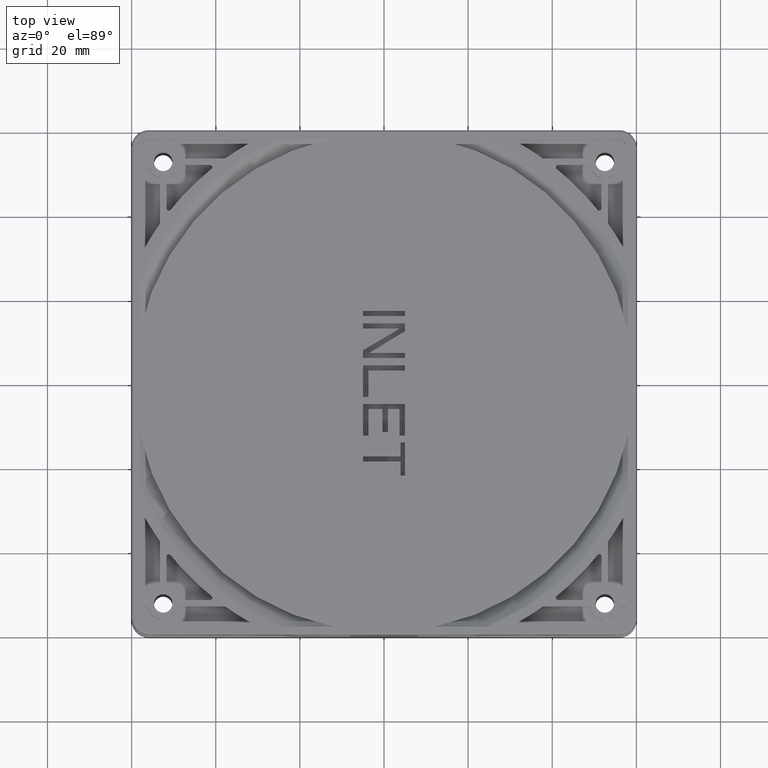
[diagram: clean part render]
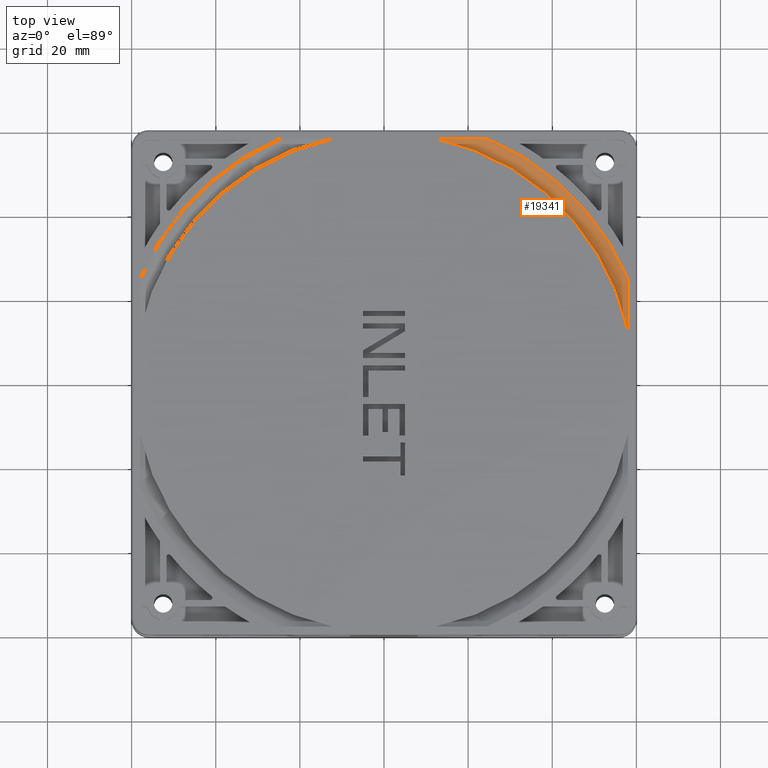
[diagram: same view with one face highlighted and labeled with its STEP entity id]
A machine part, top view. The second image highlights one B-rep face of the part: STEP entity #19341.
In plain terms, the highlighted toroidal blend (fillet) surface has major radius 63 mm and minor (blend) radius 5 mm.
Its self-contained STEP definition (entity closure, byte-faithful):
#2975=CARTESIAN_POINT('',(2.131628207280E-14,1.421085471520E-14,0.E0));
#2976=DIRECTION('',(0.E0,0.E0,1.E0));
#2977=DIRECTION('',(9.206349206349E-1,3.904245675E-1,0.E0));
#2978=AXIS2_PLACEMENT_3D('',#2975,#2976,#2977);
#3789=CARTESIAN_POINT('',(5.8E1,2.459674775250E1,0.E0));
#3790=CARTESIAN_POINT('',(5.8E1,2.395479458120E1,-1.073855202947E-14));
#3791=CARTESIAN_POINT('',(5.8E1,2.260292112466E1,-3.778826719148E-2));
#3792=CARTESIAN_POINT('',(5.8E1,2.037364216722E1,-2.196132186120E-1));
#3793=CARTESIAN_POINT('',(5.8E1,1.793555173522E1,-5.368508983974E-1));
#3794=CARTESIAN_POINT('',(5.8E1,1.527963732358E1,-9.981543203763E-1));
#3795=CARTESIAN_POINT('',(5.8E1,1.335123823167E1,-1.407274525987E0));
#3796=CARTESIAN_POINT('',(5.8E1,1.234868414043E1,-1.636965655840E0));
#3798=CARTESIAN_POINT('',(2.131628207280E-14,1.421085471520E-14,
-1.636965655840E0));
#3799=DIRECTION('',(0.E0,0.E0,-1.E0));
#3800=DIRECTION('',(2.082408792652E-1,9.780775716695E-1,0.E0));
#3801=AXIS2_PLACEMENT_3D('',#3798,#3799,#3800);
#3815=CARTESIAN_POINT('',(2.459674775250E1,5.8E1,0.E0));
#3816=CARTESIAN_POINT('',(2.395476056281E1,5.8E1,0.E0));
#3817=CARTESIAN_POINT('',(2.260284180047E1,5.8E1,-3.779306927346E-2));
#3818=CARTESIAN_POINT('',(2.037362794835E1,5.8E1,-2.196156252836E-1));
#3819=CARTESIAN_POINT('',(1.793554119512E1,5.8E1,-5.368521588964E-1));
#3820=CARTESIAN_POINT('',(1.527961001234E1,5.8E1,-9.981596632977E-1));
#3821=CARTESIAN_POINT('',(1.335122695079E1,5.8E1,-1.407277110504E0));
#3822=CARTESIAN_POINT('',(1.234868414043E1,5.8E1,-1.636965655840E0));
#12779=CARTESIAN_POINT('',(5.8E1,2.459674775250E1,0.E0));
#12780=CARTESIAN_POINT('',(2.459674775250E1,5.8E1,0.E0));
#12781=VERTEX_POINT('',#12779);
#12782=VERTEX_POINT('',#12780);
#14405=VERTEX_POINT('',#3822);
#14406=VERTEX_POINT('',#3796);
#19329=CARTESIAN_POINT('',(2.131628207280E-14,1.421085471520E-14,-5.E0));
#19330=DIRECTION('',(0.E0,0.E0,1.E0));
#19331=DIRECTION('',(9.999555856259E-1,-9.424795787115E-3,0.E0));
#19332=AXIS2_PLACEMENT_3D('',#19329,#19330,#19331);
#19333=TOROIDAL_SURFACE('',#19332,6.3E1,5.E0);
#19335=ORIENTED_EDGE('',*,*,#19334,.F.);
#19336=ORIENTED_EDGE('',*,*,#18831,.F.);
#19337=ORIENTED_EDGE('',*,*,#19312,.T.);
#19338=ORIENTED_EDGE('',*,*,#15874,.F.);
#19339=EDGE_LOOP('',(#19335,#19336,#19337,#19338));
#19340=FACE_OUTER_BOUND('',#19339,.F.);
#19341=ADVANCED_FACE('',(#19340),#19333,.T.);
#2979=CIRCLE('',#2978,6.3E1);
#3797=B_SPLINE_CURVE_WITH_KNOTS('',3,(#3789,#3790,#3791,#3792,#3793,#3794,#3795,
#3796),.UNSPECIFIED.,.F.,.F.,(4,1,1,1,1,4),(0.E0,2.E-1,4.E-1,6.E-1,8.E-1,1.E0),
.UNSPECIFIED.);
#3802=CIRCLE('',#3801,5.93E1);
#3823=B_SPLINE_CURVE_WITH_KNOTS('',3,(#3815,#3816,#3817,#3818,#3819,#3820,#3821,
#3822),.UNSPECIFIED.,.F.,.F.,(4,1,1,1,1,4),(0.E0,2.E-1,4.E-1,6.E-1,8.E-1,1.E0),
.UNSPECIFIED.);
#15874=EDGE_CURVE('',#14405,#14406,#3802,.T.);
#18831=EDGE_CURVE('',#12781,#12782,#2979,.T.);
#19312=EDGE_CURVE('',#12781,#14406,#3797,.T.);
#19334=EDGE_CURVE('',#12782,#14405,#3823,.T.);